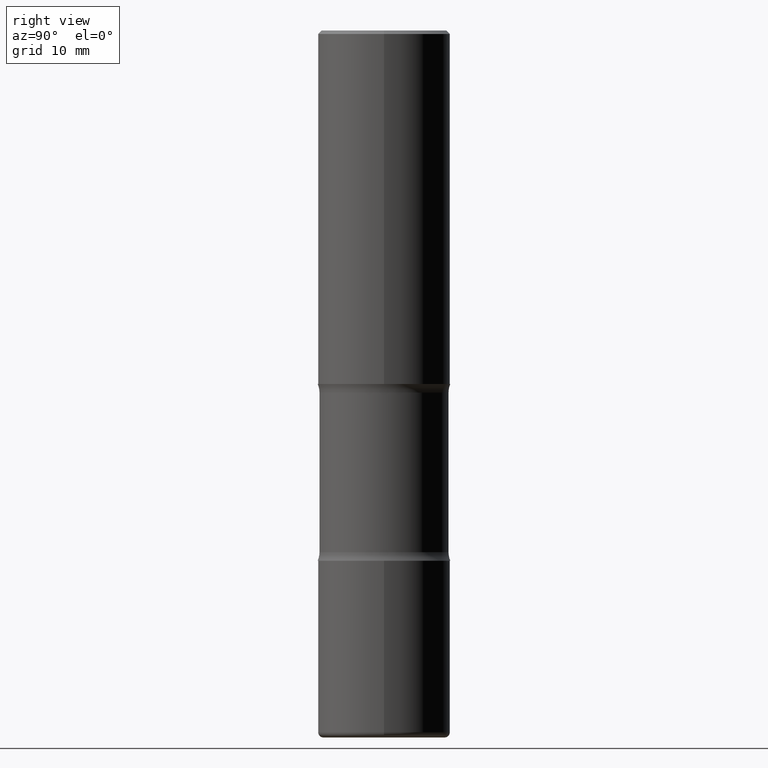
[diagram: clean part render]
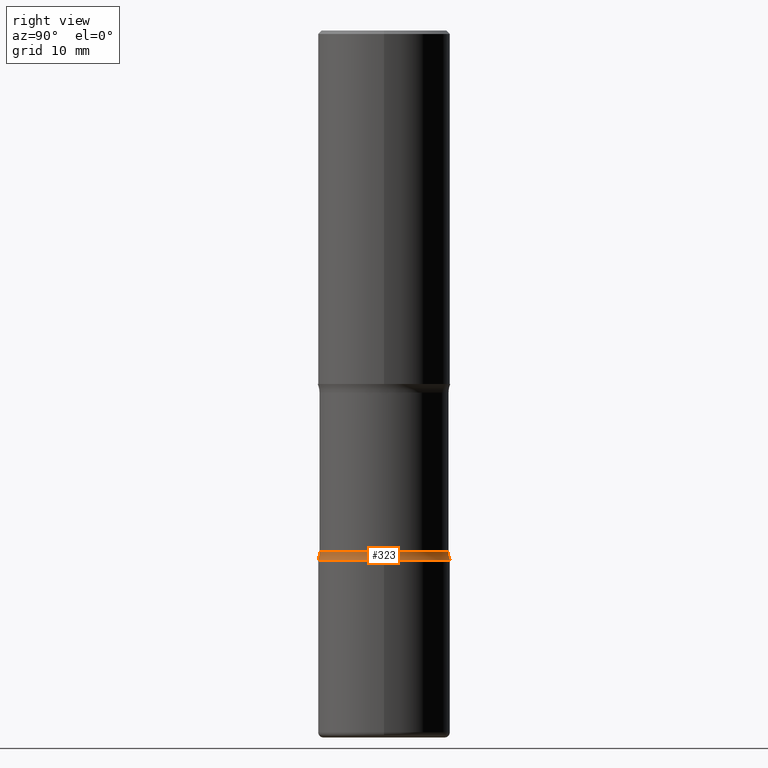
[diagram: same view with one face highlighted and labeled with its STEP entity id]
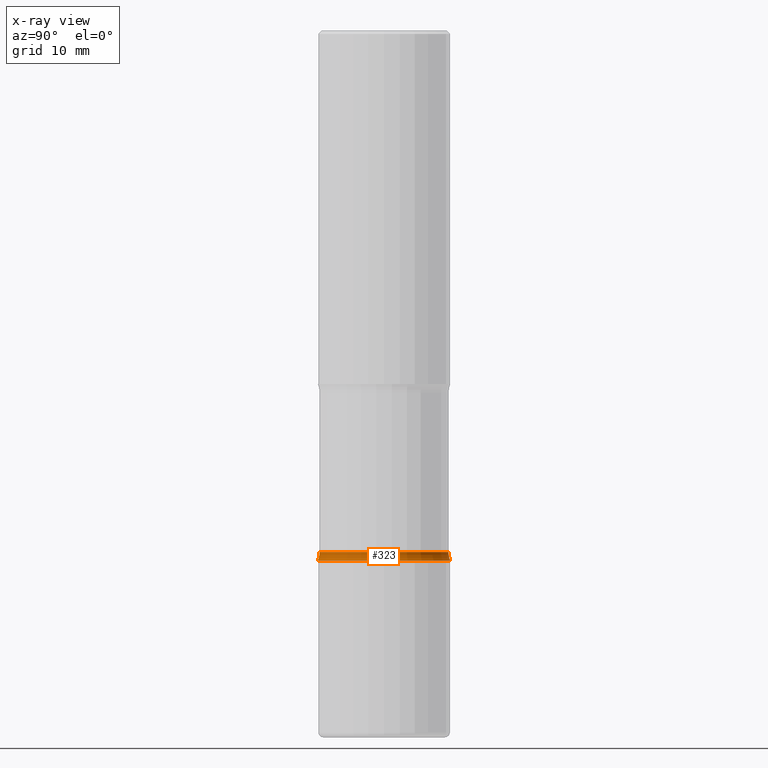
[diagram: x-ray of the same camera — body ghosted, the highlighted face saturated]
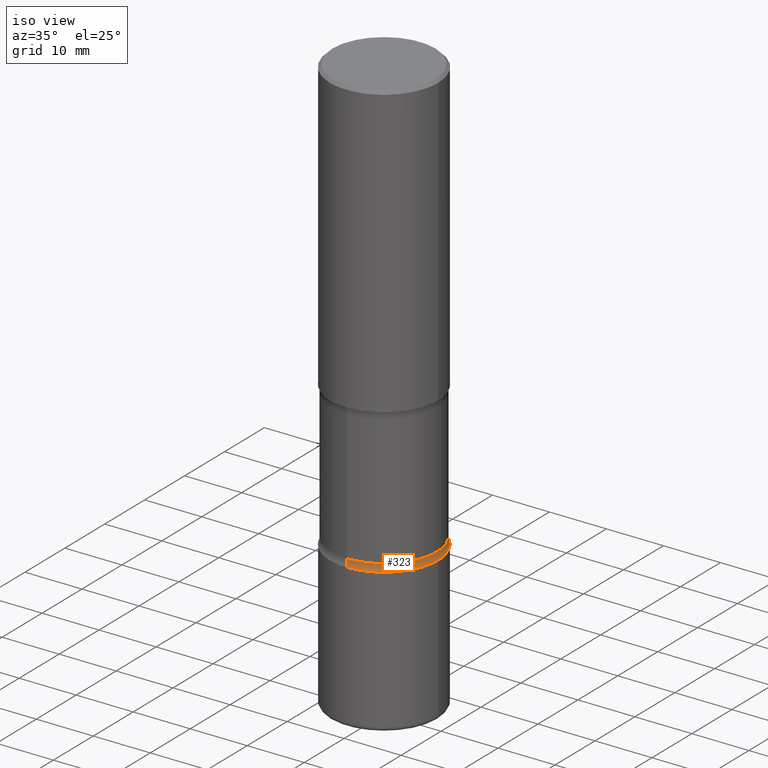
[diagram: same view with one face highlighted and labeled with its STEP entity id]
A machine part, right view. The second image highlights one B-rep face of the part: STEP entity #323.
The next image is the same camera in x-ray: the body ghosted, the highlighted face saturated — about 0% of this face is hidden behind the body in this view.
A second angle (iso view) of the same face is appended — the face is thin or edge-on in the first view.
In plain terms, the highlighted toroidal blend (fillet) surface has major radius 12.446 mm and minor (blend) radius 3.175 mm.
Its self-contained STEP definition (entity closure, byte-faithful):
#22 = EDGE_CURVE ( 'NONE', #190, #147, #527, .T. ) ;
#31 = DIRECTION ( 'NONE',  ( 6.982962677686265922E-15, 1.000000000000000000, -3.764364172614001380E-15 ) ) ;
#39 = AXIS2_PLACEMENT_3D ( 'NONE', #181, #306, #148 ) ;
#50 = DIRECTION ( 'NONE',  ( 6.860497997771532351E-15, 1.000000000000000000, 0.000000000000000000 ) ) ;
#60 = CARTESIAN_POINT ( 'NONE',  ( -2.572686749164255705E-15, -0.3750000000000111577, -2.999999999999997335 ) ) ;
#76 = ORIENTED_EDGE ( 'NONE', *, *, #178, .T. ) ;
#82 = VERTEX_POINT ( 'NONE', #362 ) ;
#91 = AXIS2_PLACEMENT_3D ( 'NONE', #161, #404, #31 ) ;
#95 = DIRECTION ( 'NONE',  ( 6.982962677686265922E-15, 1.000000000000000000, -4.490709030680980363E-15 ) ) ;
#102 = DIRECTION ( 'NONE',  ( 2.254915741824821778E-29, -3.764364172614001380E-15, -1.000000000000000000 ) ) ;
#124 = DIRECTION ( 'NONE',  ( 1.000000000000000000, -6.860497997771530774E-15, 4.837457028734946037E-29 ) ) ;
#131 = DIRECTION ( 'NONE',  ( 2.254915741824821778E-29, -3.764364172614001380E-15, -1.000000000000000000 ) ) ;
#147 = VERTEX_POINT ( 'NONE', #225 ) ;
#148 = DIRECTION ( 'NONE',  ( -6.982962677686265133E-15, -1.000000000000000000, 0.000000000000000000 ) ) ;
#158 = VERTEX_POINT ( 'NONE', #443 ) ;
#161 = CARTESIAN_POINT ( 'NONE',  ( 7.216603403414470205E-29, -1.030339706199712749E-14, -2.951010205144334542 ) ) ;
#172 = EDGE_CURVE ( 'NONE', #158, #82, #457, .T. ) ;
#178 = EDGE_CURVE ( 'NONE', #82, #147, #384, .T. ) ;
#181 = CARTESIAN_POINT ( 'NONE',  ( 3.421651712066343816E-15, 0.4899999999999898326, -2.951010205144335874 ) ) ;
#190 = VERTEX_POINT ( 'NONE', #60 ) ;
#225 = CARTESIAN_POINT ( 'NONE',  ( -2.538384259175396264E-15, -0.3650000000000103717, -2.951010205144333209 ) ) ;
#237 = ORIENTED_EDGE ( 'NONE', *, *, #172, .T. ) ;
#240 = AXIS2_PLACEMENT_3D ( 'NONE', #507, #124, #50 ) ;
#294 = AXIS2_PLACEMENT_3D ( 'NONE', #546, #131, #425 ) ;
#306 = DIRECTION ( 'NONE',  ( -1.000000000000000000, 6.982962677686265922E-15, -4.883557194083112901E-29 ) ) ;
#323 = ADVANCED_FACE ( 'NONE', ( #496 ), #355, .F. ) ;
#355 = TOROIDAL_SURFACE ( 'NONE', #91, 0.4900000000000001577, 0.1250000000000000278 ) ;
#360 = EDGE_LOOP ( 'NONE', ( #449, #553, #237, #76 ) ) ;
#362 = CARTESIAN_POINT ( 'NONE',  ( 2.548781377355560082E-15, 0.3649999999999897771, -2.951010205144336318 ) ) ;
#366 = AXIS2_PLACEMENT_3D ( 'NONE', #401, #102, #95 ) ;
#384 = CIRCLE ( 'NONE', #366, 0.3650000000000000466 ) ;
#389 = CIRCLE ( 'NONE', #294, 0.3750000000000007772 ) ;
#401 = CARTESIAN_POINT ( 'NONE',  ( 7.225938558946600892E-29, -1.029002858795106075E-14, -2.951010205144334986 ) ) ;
#404 = DIRECTION ( 'NONE',  ( 2.254915741824821778E-29, -3.764364172614001380E-15, -1.000000000000000000 ) ) ;
#405 = EDGE_CURVE ( 'NONE', #158, #190, #389, .T. ) ;
#425 = DIRECTION ( 'NONE',  ( 6.982962677686266711E-15, 1.000000000000000000, -4.370956789862812472E-15 ) ) ;
#443 = CARTESIAN_POINT ( 'NONE',  ( 2.618611004132428508E-15, 0.3749999999999902855, -3.000000000000000888 ) ) ;
#449 = ORIENTED_EDGE ( 'NONE', *, *, #22, .F. ) ;
#457 = CIRCLE ( 'NONE', #39, 0.1250000000000000278 ) ;
#496 = FACE_OUTER_BOUND ( 'NONE', #360, .T. ) ;
#507 = CARTESIAN_POINT ( 'NONE',  ( -3.361644018907979058E-15, -0.4900000000000104827, -2.951010205144332765 ) ) ;
#527 = CIRCLE ( 'NONE', #240, 0.1250000000000000278 ) ;
#546 = CARTESIAN_POINT ( 'NONE',  ( 7.336406418555407548E-29, -1.047444401652943320E-14, -2.999999999999999112 ) ) ;
#553 = ORIENTED_EDGE ( 'NONE', *, *, #405, .F. ) ;